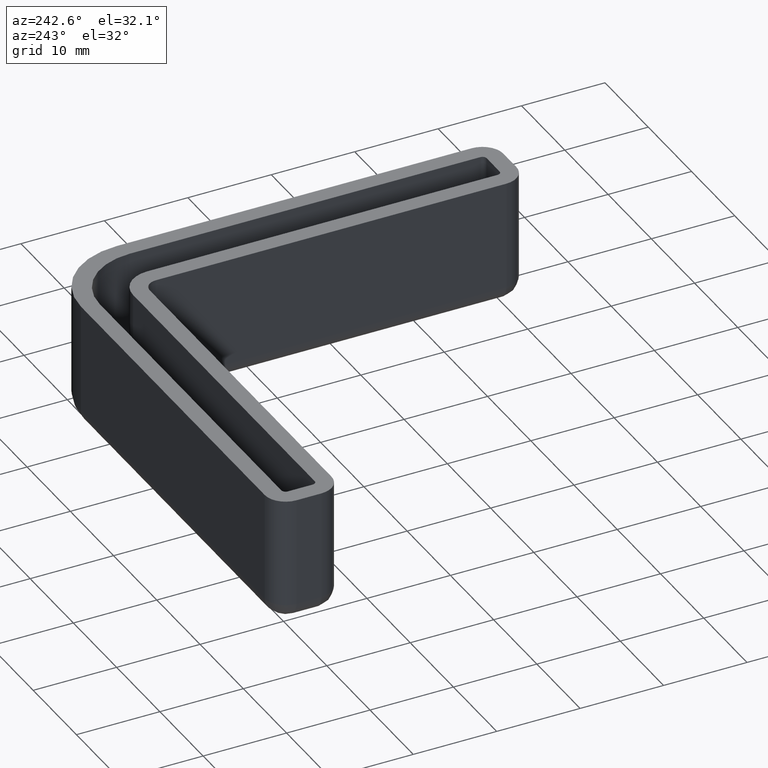
[diagram: clean part render]
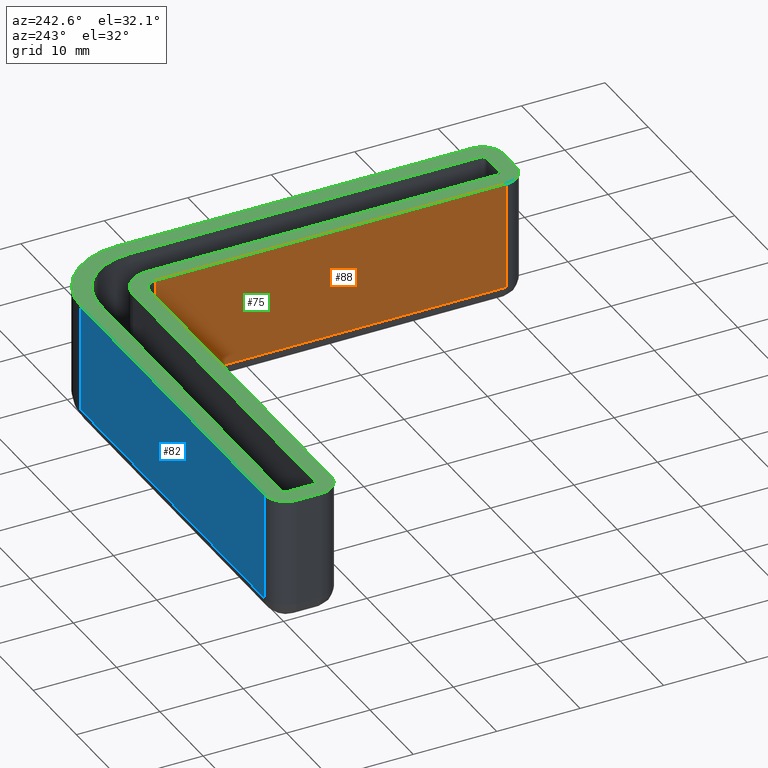
[diagram: same view with three faces highlighted in distinct colors, each labeled with its STEP entity id]
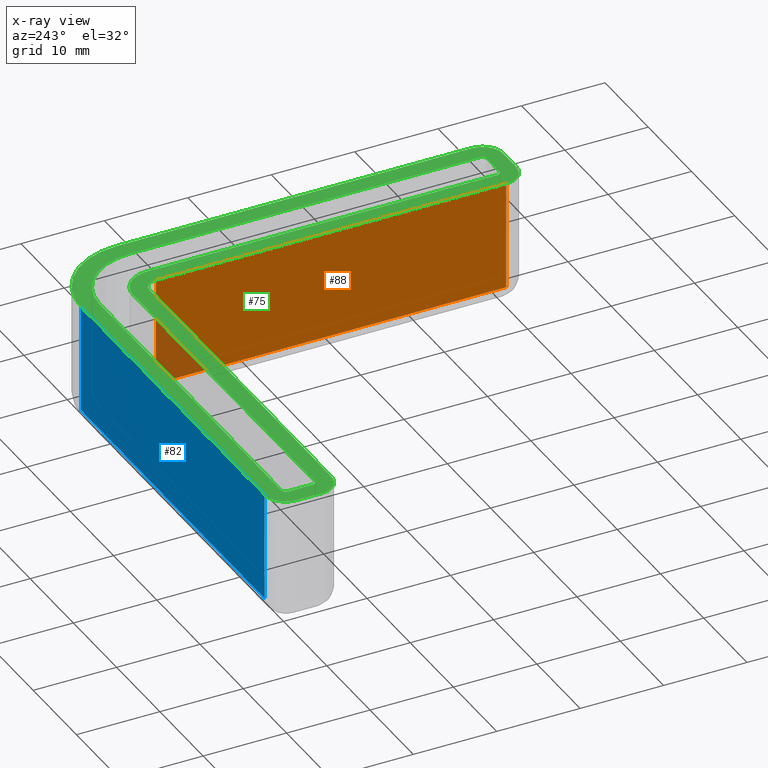
[diagram: x-ray of the same camera — body ghosted, the three highlighted faces saturated]
A machine part, auxiliary view with three faces highlighted in distinct colors.
The next image is the same camera in x-ray (body ghosted, the three faces saturated) — at least one of them is partly hidden behind the body in this view.
Their STEP definitions:

[orange] entity #88 — the highlighted planar face has unit normal (-1, 0, 0).
#88 = ADVANCED_FACE( '', ( #142 ), #143, .T. );
#142 = FACE_OUTER_BOUND( '', #221, .T. );
#143 = PLANE( '', #222 );
#221 = EDGE_LOOP( '', ( #480, #481, #482, #483 ) );
#222 = AXIS2_PLACEMENT_3D( '', #484, #485, #486 );
#480 = ORIENTED_EDGE( '', *, *, #715, .F. );
#481 = ORIENTED_EDGE( '', *, *, #716, .T. );
#482 = ORIENTED_EDGE( '', *, *, #717, .T. );
#483 = ORIENTED_EDGE( '', *, *, #667, .F. );
#484 = CARTESIAN_POINT( '', ( -6.00000000000000, -7.49999999999999, -15.0000000000000 ) );
#485 = DIRECTION( '', ( -1.00000000000000, 1.83175957041426E-016, 0.000000000000000 ) );
#486 = DIRECTION( '', ( 1.83175957041426E-016, 1.00000000000000, 0.000000000000000 ) );
#667 = EDGE_CURVE( '', #771, #773, #774, .T. );
#715 = EDGE_CURVE( '', #855, #771, #857, .T. );
#716 = EDGE_CURVE( '', #855, #858, #859, .T. );
#717 = EDGE_CURVE( '', #858, #773, #860, .T. );
#771 = VERTEX_POINT( '', #931 );
#773 = VERTEX_POINT( '', #933 );
#774 = LINE( '', #934, #935 );
#855 = VERTEX_POINT( '', #1045 );
#857 = LINE( '', #1047, #1048 );
#858 = VERTEX_POINT( '', #1049 );
#859 = LINE( '', #1050, #1051 );
#860 = LINE( '', #1052, #1053 );
#931 = CARTESIAN_POINT( '', ( -6.00000000000000, -7.50000000000000, 0.000000000000000 ) );
#933 = CARTESIAN_POINT( '', ( -6.00000000000001, -49.5000000000000, 0.000000000000000 ) );
#934 = CARTESIAN_POINT( '', ( -6.00000000000000, -7.49999999999999, 0.000000000000000 ) );
#935 = VECTOR( '', #1139, 1000.00000000000 );
#1045 = CARTESIAN_POINT( '', ( -6.00000000000000, -7.50000000000000, -13.0000000000000 ) );
#1047 = CARTESIAN_POINT( '', ( -6.00000000000000, -7.50000000000000, -15.0000000000000 ) );
#1048 = VECTOR( '', #1223, 1000.00000000000 );
#1049 = CARTESIAN_POINT( '', ( -6.00000000000001, -49.5000000000000, -13.0000000000000 ) );
#1050 = CARTESIAN_POINT( '', ( -6.00000000000001, -49.5000000000000, -13.0000000000000 ) );
#1051 = VECTOR( '', #1224, 1000.00000000000 );
#1052 = CARTESIAN_POINT( '', ( -6.00000000000001, -49.5000000000000, -15.0000000000000 ) );
#1053 = VECTOR( '', #1225, 1000.00000000000 );
#1139 = DIRECTION( '', ( -1.83175957041426E-016, -1.00000000000000, 0.000000000000000 ) );
#1223 = DIRECTION( '', ( 0.000000000000000, 0.000000000000000, 1.00000000000000 ) );
#1224 = DIRECTION( '', ( -1.83175957041426E-016, -1.00000000000000, 0.000000000000000 ) );
#1225 = DIRECTION( '', ( 0.000000000000000, 0.000000000000000, 1.00000000000000 ) );

[blue] entity #82 — the highlighted planar face has unit normal (0, 1, 0).
#82 = ADVANCED_FACE( '', ( #130 ), #131, .T. );
#130 = FACE_OUTER_BOUND( '', #209, .T. );
#131 = PLANE( '', #210 );
#209 = EDGE_LOOP( '', ( #438, #439, #440, #441 ) );
#210 = AXIS2_PLACEMENT_3D( '', #442, #443, #444 );
#438 = ORIENTED_EDGE( '', *, *, #703, .F. );
#439 = ORIENTED_EDGE( '', *, *, #704, .T. );
#440 = ORIENTED_EDGE( '', *, *, #705, .T. );
#441 = ORIENTED_EDGE( '', *, *, #661, .F. );
#442 = CARTESIAN_POINT( '', ( -7.00000000000001, 2.00000000000000, -15.0000000000000 ) );
#443 = DIRECTION( '', ( 1.22460635382238E-016, 1.00000000000000, 0.000000000000000 ) );
#444 = DIRECTION( '', ( 1.00000000000000, -1.22460635382238E-016, 0.000000000000000 ) );
#661 = EDGE_CURVE( '', #759, #761, #762, .T. );
#703 = EDGE_CURVE( '', #837, #759, #839, .T. );
#704 = EDGE_CURVE( '', #837, #840, #841, .T. );
#705 = EDGE_CURVE( '', #840, #761, #842, .T. );
#759 = VERTEX_POINT( '', #916 );
#761 = VERTEX_POINT( '', #918 );
#762 = LINE( '', #919, #920 );
#837 = VERTEX_POINT( '', #1018 );
#839 = LINE( '', #1020, #1021 );
#840 = VERTEX_POINT( '', #1022 );
#841 = LINE( '', #1023, #1024 );
#842 = LINE( '', #1025, #1026 );
#916 = CARTESIAN_POINT( '', ( -7.00000000000000, 2.00000000000000, 0.000000000000000 ) );
#918 = CARTESIAN_POINT( '', ( -49.5000000000000, 2.00000000000001, 0.000000000000000 ) );
#919 = CARTESIAN_POINT( '', ( -7.00000000000001, 2.00000000000000, 0.000000000000000 ) );
#920 = VECTOR( '', #1127, 1000.00000000000 );
#1018 = CARTESIAN_POINT( '', ( -7.00000000000000, 2.00000000000000, -13.0000000000000 ) );
#1020 = CARTESIAN_POINT( '', ( -7.00000000000000, 2.00000000000000, -15.0000000000000 ) );
#1021 = VECTOR( '', #1205, 1000.00000000000 );
#1022 = CARTESIAN_POINT( '', ( -49.5000000000000, 2.00000000000001, -13.0000000000000 ) );
#1023 = CARTESIAN_POINT( '', ( -49.5000000000000, 2.00000000000001, -13.0000000000000 ) );
#1024 = VECTOR( '', #1206, 1000.00000000000 );
#1025 = CARTESIAN_POINT( '', ( -49.5000000000000, 2.00000000000001, -15.0000000000000 ) );
#1026 = VECTOR( '', #1207, 1000.00000000000 );
#1127 = DIRECTION( '', ( -1.00000000000000, 1.22460635382238E-016, 0.000000000000000 ) );
#1205 = DIRECTION( '', ( 0.000000000000000, 0.000000000000000, 1.00000000000000 ) );
#1206 = DIRECTION( '', ( -1.00000000000000, 1.22460635382238E-016, 0.000000000000000 ) );
#1207 = DIRECTION( '', ( 0.000000000000000, 0.000000000000000, 1.00000000000000 ) );

[green] entity #75 — the highlighted planar face has unit normal (0, 0, 1).
#75 = ADVANCED_FACE( '', ( #115, #116 ), #117, .T. );
#115 = FACE_OUTER_BOUND( '', #194, .T. );
#116 = FACE_BOUND( '', #195, .T. );
#117 = PLANE( '', #196 );
#194 = EDGE_LOOP( '', ( #361, #362, #363, #364, #365, #366, #367, #368, #369, #370, #371, #372 ) );
#195 = EDGE_LOOP( '', ( #373, #374, #375, #376, #377, #378, #379, #380, #381, #382, #383, #384 ) );
#196 = AXIS2_PLACEMENT_3D( '', #385, #386, #387 );
#361 = ORIENTED_EDGE( '', *, *, #658, .T. );
#362 = ORIENTED_EDGE( '', *, *, #659, .T. );
#363 = ORIENTED_EDGE( '', *, *, #660, .T. );
#364 = ORIENTED_EDGE( '', *, *, #661, .T. );
#365 = ORIENTED_EDGE( '', *, *, #662, .T. );
#366 = ORIENTED_EDGE( '', *, *, #663, .T. );
#367 = ORIENTED_EDGE( '', *, *, #664, .T. );
#368 = ORIENTED_EDGE( '', *, *, #665, .T. );
#369 = ORIENTED_EDGE( '', *, *, #666, .T. );
#370 = ORIENTED_EDGE( '', *, *, #667, .T. );
#371 = ORIENTED_EDGE( '', *, *, #668, .T. );
#372 = ORIENTED_EDGE( '', *, *, #669, .T. );
#373 = ORIENTED_EDGE( '', *, *, #670, .T. );
#374 = ORIENTED_EDGE( '', *, *, #671, .T. );
#375 = ORIENTED_EDGE( '', *, *, #672, .T. );
#376 = ORIENTED_EDGE( '', *, *, #673, .T. );
#377 = ORIENTED_EDGE( '', *, *, #674, .T. );
#378 = ORIENTED_EDGE( '', *, *, #675, .T. );
#379 = ORIENTED_EDGE( '', *, *, #676, .T. );
#380 = ORIENTED_EDGE( '', *, *, #677, .T. );
#381 = ORIENTED_EDGE( '', *, *, #678, .T. );
#382 = ORIENTED_EDGE( '', *, *, #679, .T. );
#383 = ORIENTED_EDGE( '', *, *, #680, .T. );
#384 = ORIENTED_EDGE( '', *, *, #681, .T. );
#385 = CARTESIAN_POINT( '', ( -0.500000000000004, -49.5000000000000, 0.000000000000000 ) );
#386 = DIRECTION( '', ( 0.000000000000000, 0.000000000000000, 1.00000000000000 ) );
#387 = DIRECTION( '', ( 1.00000000000000, -1.83690953073357E-016, 0.000000000000000 ) );
#658 = EDGE_CURVE( '', #754, #755, #756, .T. );
#659 = EDGE_CURVE( '', #755, #757, #758, .T. );
#660 = EDGE_CURVE( '', #757, #759, #760, .T. );
#661 = EDGE_CURVE( '', #759, #761, #762, .T. );
#662 = EDGE_CURVE( '', #761, #763, #764, .T. );
#663 = EDGE_CURVE( '', #763, #765, #766, .T. );
#664 = EDGE_CURVE( '', #765, #767, #768, .T. );
#665 = EDGE_CURVE( '', #767, #769, #770, .T. );
#666 = EDGE_CURVE( '', #769, #771, #772, .T. );
#667 = EDGE_CURVE( '', #771, #773, #774, .T. );
#668 = EDGE_CURVE( '', #773, #775, #776, .T. );
#669 = EDGE_CURVE( '', #775, #754, #777, .T. );
#670 = EDGE_CURVE( '', #778, #779, #780, .T. );
#671 = EDGE_CURVE( '', #779, #781, #782, .F. );
#672 = EDGE_CURVE( '', #781, #783, #784, .T. );
#673 = EDGE_CURVE( '', #783, #785, #786, .F. );
#674 = EDGE_CURVE( '', #785, #787, #788, .T. );
#675 = EDGE_CURVE( '', #787, #789, #790, .T. );
#676 = EDGE_CURVE( '', #789, #791, #792, .T. );
#677 = EDGE_CURVE( '', #791, #793, #794, .F. );
#678 = EDGE_CURVE( '', #793, #795, #796, .T. );
#679 = EDGE_CURVE( '', #795, #797, #798, .F. );
#680 = EDGE_CURVE( '', #797, #799, #800, .T. );
#681 = EDGE_CURVE( '', #799, #778, #801, .F. );
#754 = VERTEX_POINT( '', #910 );
#755 = VERTEX_POINT( '', #911 );
#756 = CIRCLE( '', #912, 2.50000000000000 );
#757 = VERTEX_POINT( '', #913 );
#758 = LINE( '', #914, #915 );
#759 = VERTEX_POINT( '', #916 );
#760 = CIRCLE( '', #917, 9.00000000000000 );
#761 = VERTEX_POINT( '', #918 );
#762 = LINE( '', #919, #920 );
#763 = VERTEX_POINT( '', #921 );
#764 = CIRCLE( '', #922, 2.50000000000000 );
#765 = VERTEX_POINT( '', #923 );
#766 = LINE( '', #924, #925 );
#767 = VERTEX_POINT( '', #926 );
#768 = CIRCLE( '', #927, 2.50000000000000 );
#769 = VERTEX_POINT( '', #928 );
#770 = LINE( '', #929, #930 );
#771 = VERTEX_POINT( '', #931 );
#772 = CIRCLE( '', #932, 1.50000000000000 );
#773 = VERTEX_POINT( '', #933 );
#774 = LINE( '', #934, #935 );
#775 = VERTEX_POINT( '', #936 );
#776 = CIRCLE( '', #937, 2.50000000000000 );
#777 = LINE( '', #938, #939 );
#778 = VERTEX_POINT( '', #940 );
#779 = VERTEX_POINT( '', #941 );
#780 = LINE( '', #942, #943 );
#781 = VERTEX_POINT( '', #944 );
#782 = CIRCLE( '', #945, 0.500000000000000 );
#783 = VERTEX_POINT( '', #946 );
#784 = LINE( '', #947, #948 );
#785 = VERTEX_POINT( '', #949 );
#786 = CIRCLE( '', #950, 0.500000000000000 );
#787 = VERTEX_POINT( '', #951 );
#788 = LINE( '', #952, #953 );
#789 = VERTEX_POINT( '', #954 );
#790 = CIRCLE( '', #955, 3.50000000000000 );
#791 = VERTEX_POINT( '', #956 );
#792 = LINE( '', #957, #958 );
#793 = VERTEX_POINT( '', #959 );
#794 = CIRCLE( '', #960, 0.500000000000000 );
#795 = VERTEX_POINT( '', #961 );
#796 = LINE( '', #962, #963 );
#797 = VERTEX_POINT( '', #964 );
#798 = CIRCLE( '', #965, 0.500000000000000 );
#799 = VERTEX_POINT( '', #966 );
#800 = LINE( '', #967, #968 );
#801 = CIRCLE( '', #969, 7.50000000000000 );
#910 = CARTESIAN_POINT( '', ( -0.500000000000012, -52.0000000000000, 0.000000000000000 ) );
#911 = CARTESIAN_POINT( '', ( 1.99999999999999, -49.5000000000000, 0.000000000000000 ) );
#912 = AXIS2_PLACEMENT_3D( '', #1120, #1121, #1122 );
#913 = CARTESIAN_POINT( '', ( 2.00000000000000, -7.00000000000001, 0.000000000000000 ) );
#914 = CARTESIAN_POINT( '', ( 1.99999999999999, -49.5000000000000, 0.000000000000000 ) );
#915 = VECTOR( '', #1123, 1000.00000000000 );
#916 = CARTESIAN_POINT( '', ( -7.00000000000000, 2.00000000000000, 0.000000000000000 ) );
#917 = AXIS2_PLACEMENT_3D( '', #1124, #1125, #1126 );
#918 = CARTESIAN_POINT( '', ( -49.5000000000000, 2.00000000000001, 0.000000000000000 ) );
#919 = CARTESIAN_POINT( '', ( -7.00000000000001, 2.00000000000000, 0.000000000000000 ) );
#920 = VECTOR( '', #1127, 1000.00000000000 );
#921 = CARTESIAN_POINT( '', ( -52.0000000000000, -0.499999999999994, 0.000000000000000 ) );
#922 = AXIS2_PLACEMENT_3D( '', #1128, #1129, #1130 );
#923 = CARTESIAN_POINT( '', ( -52.0000000000000, -3.49999999999998, 0.000000000000000 ) );
#924 = CARTESIAN_POINT( '', ( -52.0000000000000, -0.499999999999980, 0.000000000000000 ) );
#925 = VECTOR( '', #1131, 1000.00000000000 );
#926 = CARTESIAN_POINT( '', ( -49.5000000000000, -6.00000000000000, 0.000000000000000 ) );
#927 = AXIS2_PLACEMENT_3D( '', #1132, #1133, #1134 );
#928 = CARTESIAN_POINT( '', ( -7.50000000000002, -6.00000000000000, 0.000000000000000 ) );
#929 = CARTESIAN_POINT( '', ( -49.5000000000000, -6.00000000000000, 0.000000000000000 ) );
#930 = VECTOR( '', #1135, 1000.00000000000 );
#931 = CARTESIAN_POINT( '', ( -6.00000000000000, -7.50000000000000, 0.000000000000000 ) );
#932 = AXIS2_PLACEMENT_3D( '', #1136, #1137, #1138 );
#933 = CARTESIAN_POINT( '', ( -6.00000000000001, -49.5000000000000, 0.000000000000000 ) );
#934 = CARTESIAN_POINT( '', ( -6.00000000000000, -7.49999999999999, 0.000000000000000 ) );
#935 = VECTOR( '', #1139, 1000.00000000000 );
#936 = CARTESIAN_POINT( '', ( -3.50000000000001, -52.0000000000000, 0.000000000000000 ) );
#937 = AXIS2_PLACEMENT_3D( '', #1140, #1141, #1142 );
#938 = CARTESIAN_POINT( '', ( -3.50000000000001, -52.0000000000000, 0.000000000000000 ) );
#939 = VECTOR( '', #1143, 1000.00000000000 );
#940 = CARTESIAN_POINT( '', ( -1.37768214805017E-015, -7.50000000000000, 0.000000000000000 ) );
#941 = CARTESIAN_POINT( '', ( -9.09270217713115E-015, -49.5000000000000, 0.000000000000000 ) );
#942 = CARTESIAN_POINT( '', ( -9.09756753438018E-015, -49.5000000000000, 0.000000000000000 ) );
#943 = VECTOR( '', #1144, 1000.00000000000 );
#944 = CARTESIAN_POINT( '', ( -0.500000000000010, -50.0000000000000, 0.000000000000000 ) );
#945 = AXIS2_PLACEMENT_3D( '', #1145, #1146, #1147 );
#946 = CARTESIAN_POINT( '', ( -3.50000000000001, -50.0000000000000, 0.000000000000000 ) );
#947 = CARTESIAN_POINT( '', ( -0.500000000000004, -50.0000000000000, 0.000000000000000 ) );
#948 = VECTOR( '', #1148, 1000.00000000000 );
#949 = CARTESIAN_POINT( '', ( -4.00000000000001, -49.5000000000000, 0.000000000000000 ) );
#950 = AXIS2_PLACEMENT_3D( '', #1149, #1150, #1151 );
#951 = CARTESIAN_POINT( '', ( -4.00000000000001, -7.50000000000000, 0.000000000000000 ) );
#952 = CARTESIAN_POINT( '', ( -4.00000000000001, -49.5000000000000, 0.000000000000000 ) );
#953 = VECTOR( '', #1152, 1000.00000000000 );
#954 = CARTESIAN_POINT( '', ( -7.50000000000001, -4.00000000000000, 0.000000000000000 ) );
#955 = AXIS2_PLACEMENT_3D( '', #1153, #1154, #1155 );
#956 = CARTESIAN_POINT( '', ( -49.5000000000000, -4.00000000000000, 0.000000000000000 ) );
#957 = CARTESIAN_POINT( '', ( -0.499999999999998, -4.00000000000000, 0.000000000000000 ) );
#958 = VECTOR( '', #1156, 1000.00000000000 );
#959 = CARTESIAN_POINT( '', ( -50.0000000000000, -3.49999999999998, 0.000000000000000 ) );
#960 = AXIS2_PLACEMENT_3D( '', #1157, #1158, #1159 );
#961 = CARTESIAN_POINT( '', ( -50.0000000000000, -0.499999999999994, 0.000000000000000 ) );
#962 = CARTESIAN_POINT( '', ( -50.0000000000000, -49.5000000000000, 0.000000000000000 ) );
#963 = VECTOR( '', #1160, 1000.00000000000 );
#964 = CARTESIAN_POINT( '', ( -49.5000000000000, 6.06180145142076E-015, 0.000000000000000 ) );
#965 = AXIS2_PLACEMENT_3D( '', #1161, #1162, #1163 );
#966 = CARTESIAN_POINT( '', ( -7.50000000000000, 9.18454765366783E-016, 0.000000000000000 ) );
#967 = CARTESIAN_POINT( '', ( -0.499999999999998, 6.12303176911186E-017, 0.000000000000000 ) );
#968 = VECTOR( '', #1164, 1000.00000000000 );
#969 = AXIS2_PLACEMENT_3D( '', #1165, #1166, #1167 );
#1120 = CARTESIAN_POINT( '', ( -0.500000000000004, -49.5000000000000, 0.000000000000000 ) );
#1121 = DIRECTION( '', ( 0.000000000000000, 0.000000000000000, 1.00000000000000 ) );
#1122 = DIRECTION( '', ( -3.57163300671037E-016, -1.00000000000000, 0.000000000000000 ) );
#1123 = DIRECTION( '', ( 1.83690953073357E-016, 1.00000000000000, 0.000000000000000 ) );
#1124 = CARTESIAN_POINT( '', ( -7.00000000000000, -7.00000000000000, 0.000000000000000 ) );
#1125 = DIRECTION( '', ( 0.000000000000000, 0.000000000000000, 1.00000000000000 ) );
#1126 = DIRECTION( '', ( 1.00000000000000, -1.83690953073357E-016, 0.000000000000000 ) );
#1127 = DIRECTION( '', ( -1.00000000000000, 1.22460635382238E-016, 0.000000000000000 ) );
#1128 = CARTESIAN_POINT( '', ( -49.5000000000000, -0.499999999999994, 0.000000000000000 ) );
#1129 = DIRECTION( '', ( 0.000000000000000, 0.000000000000000, 1.00000000000000 ) );
#1130 = DIRECTION( '', ( 1.83690953073357E-016, 1.00000000000000, 0.000000000000000 ) );
#1131 = DIRECTION( '', ( -1.91849574421310E-016, -1.00000000000000, 0.000000000000000 ) );
#1132 = CARTESIAN_POINT( '', ( -49.5000000000000, -3.50000000000000, 0.000000000000000 ) );
#1133 = DIRECTION( '', ( 0.000000000000000, 0.000000000000000, 1.00000000000000 ) );
#1134 = DIRECTION( '', ( -1.00000000000000, 1.83690953073357E-016, 0.000000000000000 ) );
#1135 = DIRECTION( '', ( 1.00000000000000, -1.22460635382238E-016, 0.000000000000000 ) );
#1136 = CARTESIAN_POINT( '', ( -7.50000000000000, -7.50000000000000, 0.000000000000000 ) );
#1137 = DIRECTION( '', ( 0.000000000000000, 0.000000000000000, -1.00000000000000 ) );
#1138 = DIRECTION( '', ( -9.72791364244514E-016, 1.00000000000000, 0.000000000000000 ) );
#1139 = DIRECTION( '', ( -1.83175957041426E-016, -1.00000000000000, 0.000000000000000 ) );
#1140 = CARTESIAN_POINT( '', ( -3.50000000000001, -49.5000000000000, 0.000000000000000 ) );
#1141 = DIRECTION( '', ( 0.000000000000000, 0.000000000000000, 1.00000000000000 ) );
#1142 = DIRECTION( '', ( -1.00000000000000, 1.83690953073357E-016, 0.000000000000000 ) );
#1143 = DIRECTION( '', ( 1.00000000000000, -1.22460635382238E-016, 0.000000000000000 ) );
#1144 = DIRECTION( '', ( -1.83690953073357E-016, -1.00000000000000, 0.000000000000000 ) );
#1145 = CARTESIAN_POINT( '', ( -0.500000000000006, -49.5000000000000, 0.000000000000000 ) );
#1146 = DIRECTION( '', ( 0.000000000000000, 0.000000000000000, 1.00000000000000 ) );
#1147 = DIRECTION( '', ( -1.00000000000000, 1.22460635382238E-016, 0.000000000000000 ) );
#1148 = DIRECTION( '', ( -1.00000000000000, 1.22460635382238E-016, 0.000000000000000 ) );
#1149 = CARTESIAN_POINT( '', ( -3.50000000000001, -49.5000000000000, 0.000000000000000 ) );
#1150 = DIRECTION( '', ( 0.000000000000000, 0.000000000000000, 1.00000000000000 ) );
#1151 = DIRECTION( '', ( -1.00000000000000, 1.22460635382238E-016, 0.000000000000000 ) );
#1152 = DIRECTION( '', ( 1.83175957041426E-016, 1.00000000000000, 0.000000000000000 ) );
#1153 = CARTESIAN_POINT( '', ( -7.50000000000000, -7.50000000000000, 0.000000000000000 ) );
#1154 = DIRECTION( '', ( 0.000000000000000, 0.000000000000000, 1.00000000000000 ) );
#1155 = DIRECTION( '', ( -1.00000000000000, 1.22460635382238E-016, 0.000000000000000 ) );
#1156 = DIRECTION( '', ( -1.00000000000000, 1.22460635382238E-016, 0.000000000000000 ) );
#1157 = CARTESIAN_POINT( '', ( -49.5000000000000, -3.50000000000000, 0.000000000000000 ) );
#1158 = DIRECTION( '', ( 0.000000000000000, 0.000000000000000, 1.00000000000000 ) );
#1159 = DIRECTION( '', ( -1.00000000000000, 1.22460635382238E-016, 0.000000000000000 ) );
#1160 = DIRECTION( '', ( 1.91849574421310E-016, 1.00000000000000, 0.000000000000000 ) );
#1161 = CARTESIAN_POINT( '', ( -49.5000000000000, -0.499999999999994, 0.000000000000000 ) );
#1162 = DIRECTION( '', ( 0.000000000000000, 0.000000000000000, 1.00000000000000 ) );
#1163 = DIRECTION( '', ( -1.00000000000000, 1.22460635382238E-016, 0.000000000000000 ) );
#1164 = DIRECTION( '', ( 1.00000000000000, -1.22460635382238E-016, 0.000000000000000 ) );
#1165 = CARTESIAN_POINT( '', ( -7.50000000000000, -7.50000000000000, 0.000000000000000 ) );
#1166 = DIRECTION( '', ( 0.000000000000000, 0.000000000000000, 1.00000000000000 ) );
#1167 = DIRECTION( '', ( -1.00000000000000, 1.22460635382238E-016, 0.000000000000000 ) );